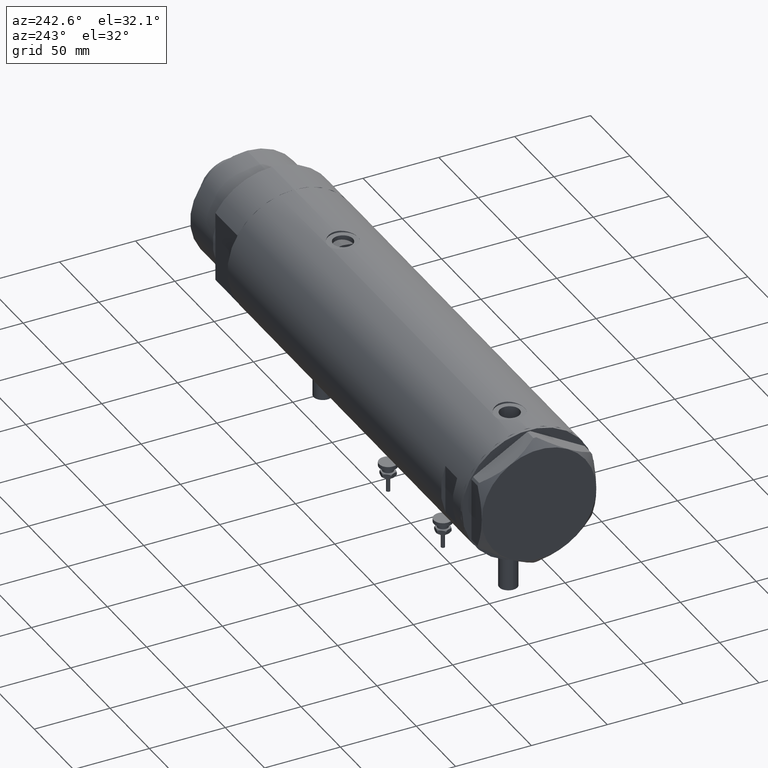
[diagram: clean part render]
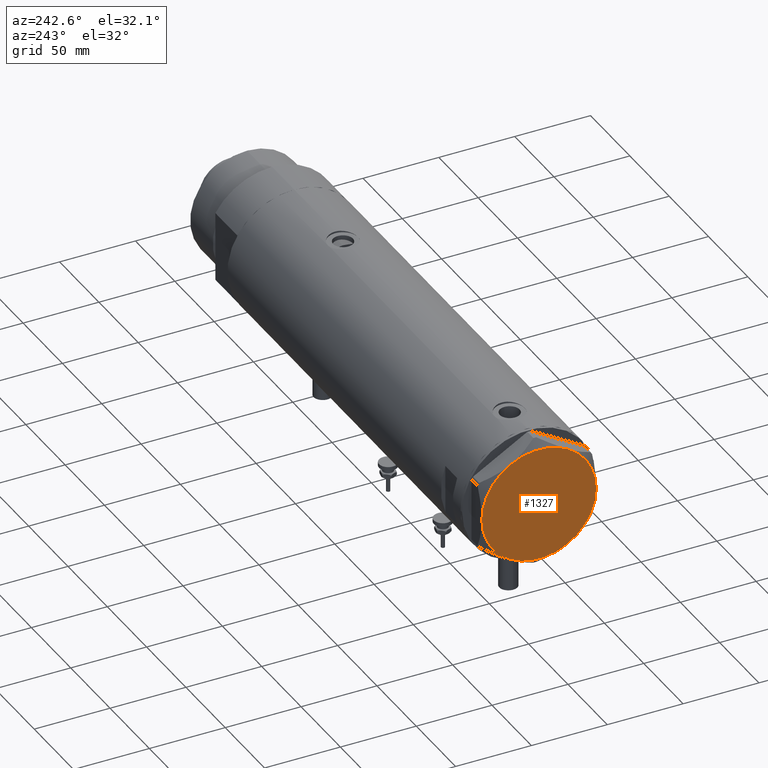
[diagram: same view with one face highlighted and labeled with its STEP entity id]
A machine part, auxiliary view. The second image highlights one B-rep face of the part: STEP entity #1327.
In plain terms, the highlighted planar face has unit normal (-1, -0, 0).
Its self-contained STEP definition (entity closure, byte-faithful):
#59 = EDGE_CURVE ( 'NONE', #3899, #3377, #2223, .T. ) ;
#99 = ORIENTED_EDGE ( 'NONE', *, *, #843, .T. ) ;
#211 = CARTESIAN_POINT ( 'NONE',  ( 18.87499999999998579, -32.69245899286256218, 13.00000000000000000 ) ) ;
#214 = CARTESIAN_POINT ( 'NONE',  ( 0.000000000000000000, 0.000000000000000000, 13.00000000000000000 ) ) ;
#251 = DIRECTION ( 'NONE',  ( 1.000000000000000000, 0.000000000000000000, 0.000000000000000000 ) ) ;
#406 = DIRECTION ( 'NONE',  ( 1.000000000000000000, 0.000000000000000000, -0.000000000000000000 ) ) ;
#513 = CARTESIAN_POINT ( 'NONE',  ( 0.000000000000000000, 0.000000000000000000, 13.00000000000000000 ) ) ;
#783 = CARTESIAN_POINT ( 'NONE',  ( 0.000000000000000000, 0.000000000000000000, 13.00000000000000000 ) ) ;
#843 = EDGE_CURVE ( 'NONE', #1844, #3899, #5724, .T. ) ;
#904 = CIRCLE ( 'NONE', #2647, 37.75000000000000000 ) ;
#909 = CARTESIAN_POINT ( 'NONE',  ( 18.87500000000000000, 32.69245899286255508, 13.00000000000000000 ) ) ;
#943 = DIRECTION ( 'NONE',  ( 1.000000000000000000, 0.000000000000000000, 0.000000000000000000 ) ) ;
#985 = EDGE_CURVE ( 'NONE', #5497, #1844, #2799, .T. ) ;
#1036 = CARTESIAN_POINT ( 'NONE',  ( 0.000000000000000000, 0.000000000000000000, 13.00000000000000000 ) ) ;
#1115 = DIRECTION ( 'NONE',  ( 0.000000000000000000, 0.000000000000000000, 1.000000000000000000 ) ) ;
#1178 = AXIS2_PLACEMENT_3D ( 'NONE', #214, #1115, #251 ) ;
#1291 = CARTESIAN_POINT ( 'NONE',  ( 0.000000000000000000, 0.000000000000000000, 13.00000000000000000 ) ) ;
#1327 = ADVANCED_FACE ( 'NONE', ( #2105 ), #5819, .T. ) ;
#1420 = EDGE_CURVE ( 'NONE', #5321, #5497, #3294, .T. ) ;
#1649 = DIRECTION ( 'NONE',  ( 0.000000000000000000, 0.000000000000000000, 1.000000000000000000 ) ) ;
#1657 = VERTEX_POINT ( 'NONE', #909 ) ;
#1658 = DIRECTION ( 'NONE',  ( 0.000000000000000000, 0.000000000000000000, 1.000000000000000000 ) ) ;
#1844 = VERTEX_POINT ( 'NONE', #4739 ) ;
#1873 = CARTESIAN_POINT ( 'NONE',  ( 0.000000000000000000, 0.000000000000000000, 13.00000000000000000 ) ) ;
#1932 = EDGE_CURVE ( 'NONE', #1657, #5321, #5368, .T. ) ;
#2079 = ORIENTED_EDGE ( 'NONE', *, *, #59, .T. ) ;
#2105 = FACE_OUTER_BOUND ( 'NONE', #2210, .T. ) ;
#2210 = EDGE_LOOP ( 'NONE', ( #2079, #2758, #3265, #2403, #4088, #99 ) ) ;
#2223 = CIRCLE ( 'NONE', #4062, 37.75000000000000000 ) ;
#2274 = DIRECTION ( 'NONE',  ( 0.000000000000000000, 0.000000000000000000, 1.000000000000000000 ) ) ;
#2403 = ORIENTED_EDGE ( 'NONE', *, *, #1420, .T. ) ;
#2526 = AXIS2_PLACEMENT_3D ( 'NONE', #1291, #1649, #406 ) ;
#2647 = AXIS2_PLACEMENT_3D ( 'NONE', #3554, #1658, #2660 ) ;
#2660 = DIRECTION ( 'NONE',  ( 1.000000000000000000, 0.000000000000000000, 0.000000000000000000 ) ) ;
#2758 = ORIENTED_EDGE ( 'NONE', *, *, #4048, .T. ) ;
#2799 = CIRCLE ( 'NONE', #3575, 37.75000000000000000 ) ;
#3265 = ORIENTED_EDGE ( 'NONE', *, *, #1932, .T. ) ;
#3294 = CIRCLE ( 'NONE', #4269, 37.75000000000000000 ) ;
#3356 = DIRECTION ( 'NONE',  ( 1.000000000000000000, 0.000000000000000000, 0.000000000000000000 ) ) ;
#3377 = VERTEX_POINT ( 'NONE', #4218 ) ;
#3554 = CARTESIAN_POINT ( 'NONE',  ( 0.000000000000000000, 0.000000000000000000, 13.00000000000000000 ) ) ;
#3575 = AXIS2_PLACEMENT_3D ( 'NONE', #1036, #4802, #3356 ) ;
#3608 = DIRECTION ( 'NONE',  ( 0.000000000000000000, 0.000000000000000000, 1.000000000000000000 ) ) ;
#3737 = DIRECTION ( 'NONE',  ( 1.000000000000000000, 0.000000000000000000, 0.000000000000000000 ) ) ;
#3899 = VERTEX_POINT ( 'NONE', #211 ) ;
#3905 = CARTESIAN_POINT ( 'NONE',  ( -37.75000000000000000, -1.201851678989727067E-14, 13.00000000000000000 ) ) ;
#4048 = EDGE_CURVE ( 'NONE', #3377, #1657, #904, .T. ) ;
#4062 = AXIS2_PLACEMENT_3D ( 'NONE', #513, #5995, #943 ) ;
#4088 = ORIENTED_EDGE ( 'NONE', *, *, #985, .T. ) ;
#4218 = CARTESIAN_POINT ( 'NONE',  ( 37.75000000000000711, 1.802777518484591547E-14, 13.00000000000000000 ) ) ;
#4269 = AXIS2_PLACEMENT_3D ( 'NONE', #783, #3608, #5503 ) ;
#4457 = CARTESIAN_POINT ( 'NONE',  ( -18.87499999999999645, 32.69245899286256218, 13.00000000000000000 ) ) ;
#4739 = CARTESIAN_POINT ( 'NONE',  ( -18.87499999999999645, -32.69245899286255508, 13.00000000000000000 ) ) ;
#4802 = DIRECTION ( 'NONE',  ( 0.000000000000000000, 0.000000000000000000, 1.000000000000000000 ) ) ;
#5321 = VERTEX_POINT ( 'NONE', #4457 ) ;
#5368 = CIRCLE ( 'NONE', #1178, 37.75000000000000000 ) ;
#5497 = VERTEX_POINT ( 'NONE', #3905 ) ;
#5503 = DIRECTION ( 'NONE',  ( 1.000000000000000000, 0.000000000000000000, 0.000000000000000000 ) ) ;
#5724 = CIRCLE ( 'NONE', #5829, 37.75000000000000000 ) ;
#5819 = PLANE ( 'NONE',  #2526 ) ;
#5829 = AXIS2_PLACEMENT_3D ( 'NONE', #1873, #2274, #3737 ) ;
#5995 = DIRECTION ( 'NONE',  ( 0.000000000000000000, 0.000000000000000000, 1.000000000000000000 ) ) ;